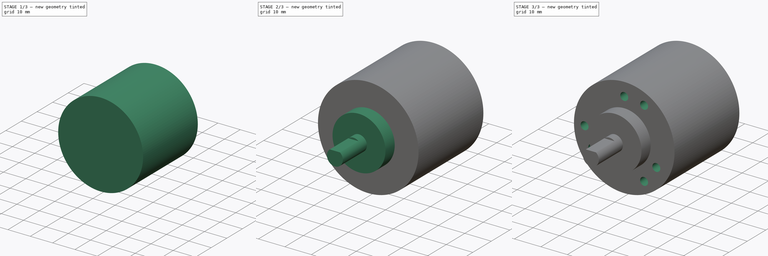
[diagram: build sequence overview — one tinted view per stage of 3, left to right]
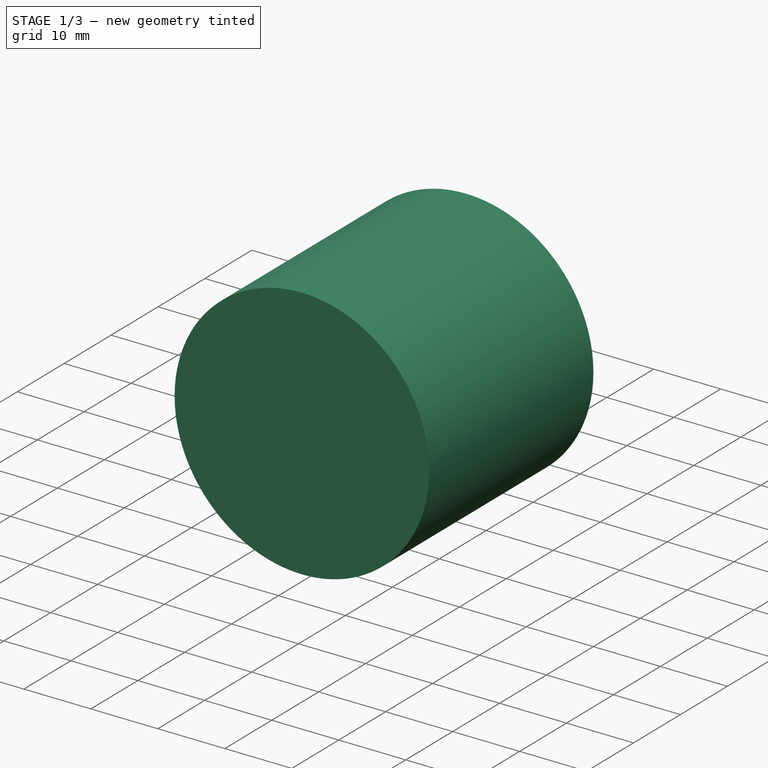
[diagram: stage 1 of 3 — iso view after this stage's code; geometry added in this stage tinted green]
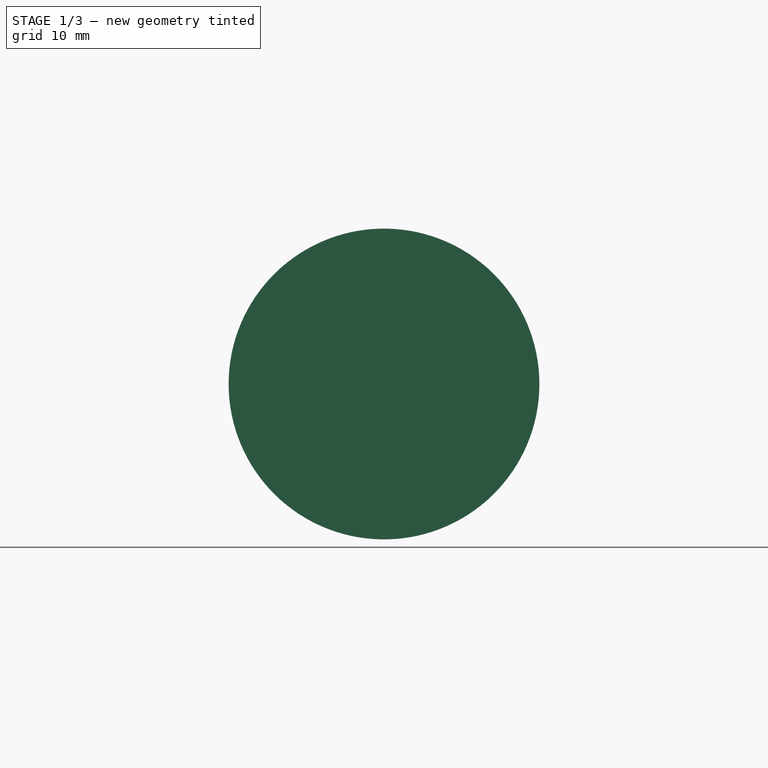
[diagram: stage 1 of 3 — front view after this stage's code; geometry added in this stage tinted green]
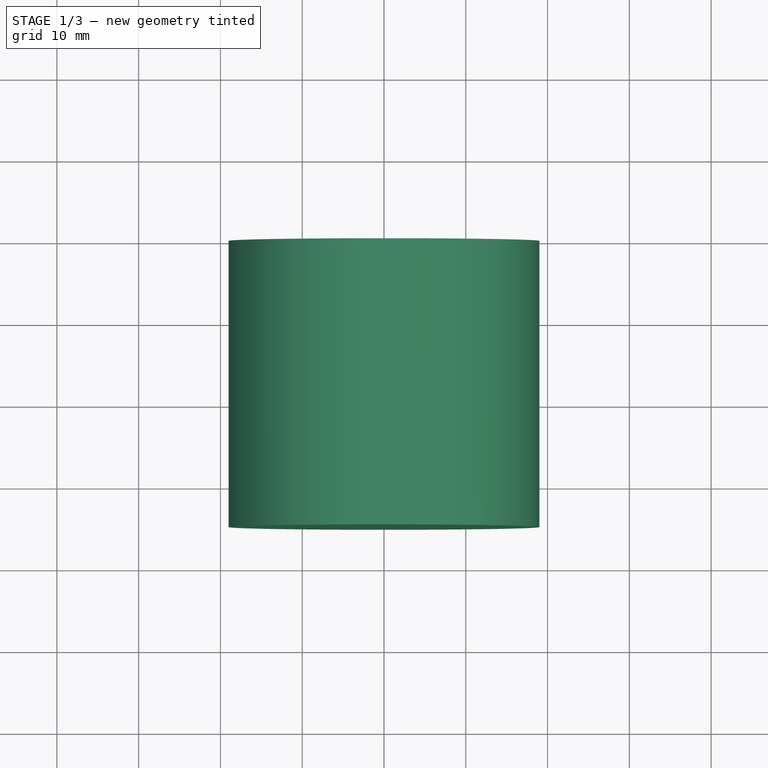
[diagram: stage 1 of 3 — top view after this stage's code; geometry added in this stage tinted green]
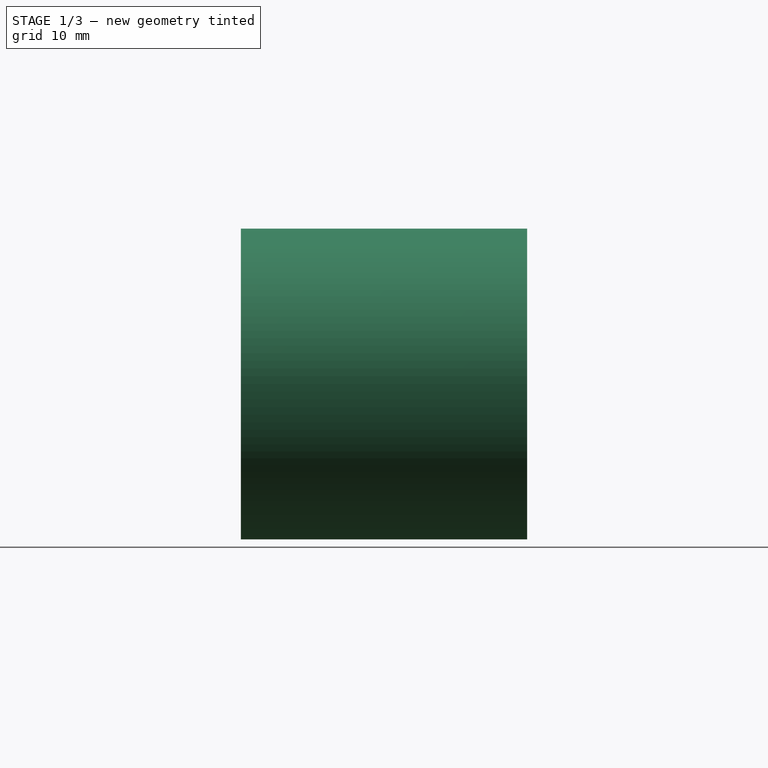
[diagram: stage 1 of 3 — right view after this stage's code; geometry added in this stage tinted green]
FCSTD DOCUMENT  (FreeCAD 0.19R24291 (Git))
Label: Codeur LPD3806-600BM-G5-24C
License: All rights reserved
LicenseURL: http://en.wikipedia.org/wiki/All_rights_reserved
objects: Sketcher::SketchObject×6, PartDesign::Pad×4, PartDesign::Pocket×2, PartDesign::PolarPattern×1, PartDesign::Body×1
note: 20 computed .brp shape members not serialized (recipe doc carries the construction recipe); baked Part::Feature solids carry a one-line shape summary decoded from their .brp

FEATURE [Sketcher::SketchObject] Sketch  label="base_codeur001"
  FullyConstrained = true
  MapMode = 5
  Placement = pos=(0,0,0) rot=(1,0,0;1.5708rad)
  Support = -> [XZ_Plane]
  sketch-geometry (1):
    g0: Circle CenterX=0 CenterY=0 CenterZ=0 NormalX=0 NormalY=0 NormalZ=1 AngleXU=0 Radius=19
  constraints (2):
    c: Coincident(g0,g-1)
    c: Radius(g0) = 19
FEATURE [PartDesign::Pad] Pad  label="base_codeur"
  Direction = (1,1,1)
  Length = 34
  Length2 = 100
  Placement = pos=(0,0,0) rot=(1,0,0;1.5708rad)
  Profile = -> Sketch
  Type = 0
FEATURE [Sketcher::SketchObject] Sketch001  label="base_codeur_up"
  ExternalGeometry = -> [Pad]
  FullyConstrained = true
  MapMode = 5
  Placement = pos=(0,-34,2.26e-14) rot=(1,0,0;1.5708rad)
  Support = -> [Pad]
  sketch-geometry (1):
    g0: Circle CenterX=0 CenterY=0 CenterZ=0 NormalX=0 NormalY=0 NormalZ=1 AngleXU=0 Radius=19
  constraints (2):
    c: Coincident(g0,g-1)
    c: Equal(g0,g-3)
FEATURE [PartDesign::Pad] Pad001  label="base_codeur_up001"
  BaseFeature = -> Pad
  Direction = (1,1,1)
  Length = 1
  Length2 = 100
  Placement = pos=(0,0,0) rot=(1,0,0;1.5708rad)
  Profile = -> Sketch001
  Type = 0
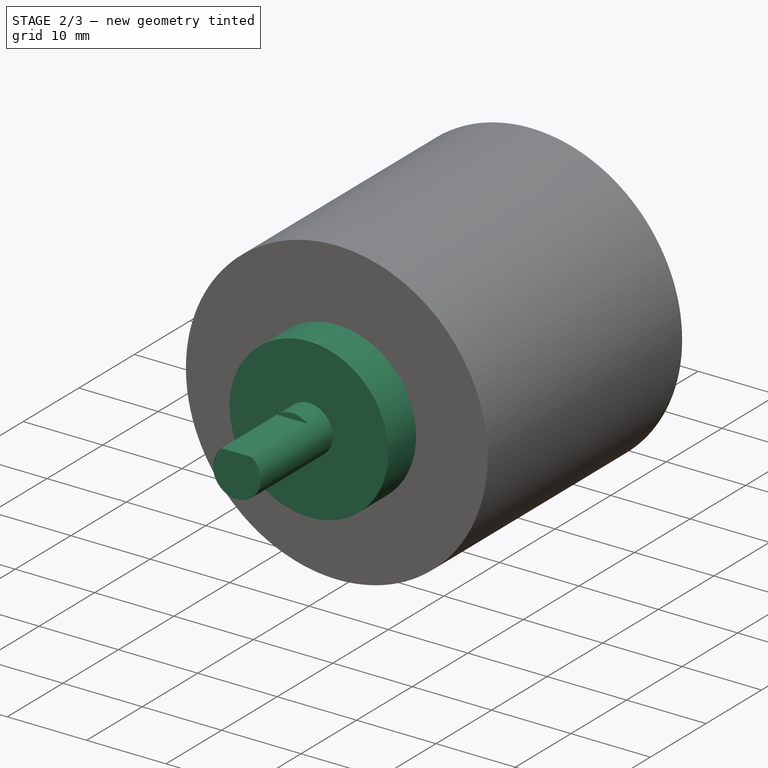
[diagram: stage 2 of 3 — iso view after this stage's code; geometry added in this stage tinted green]
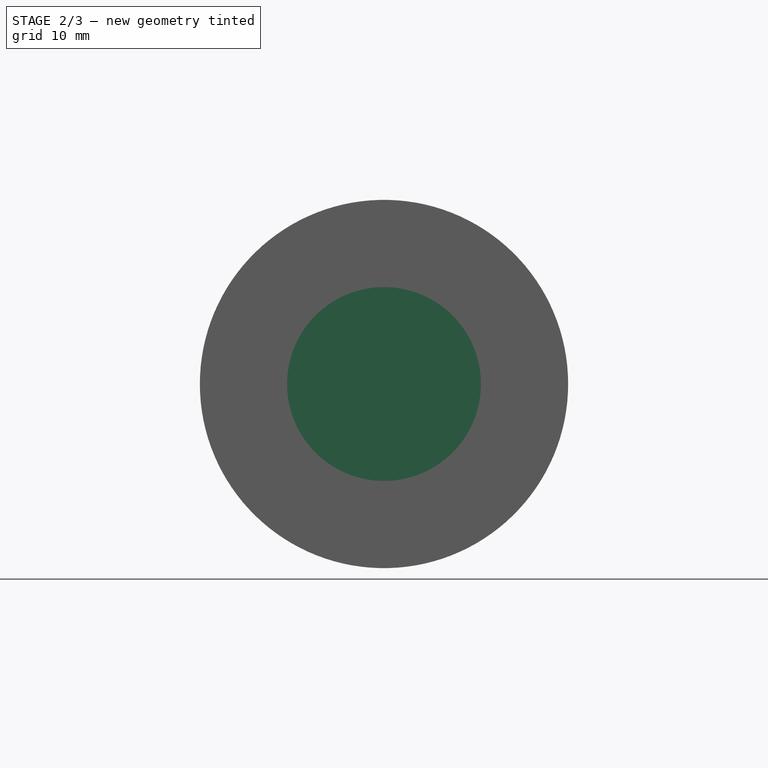
[diagram: stage 2 of 3 — front view after this stage's code; geometry added in this stage tinted green]
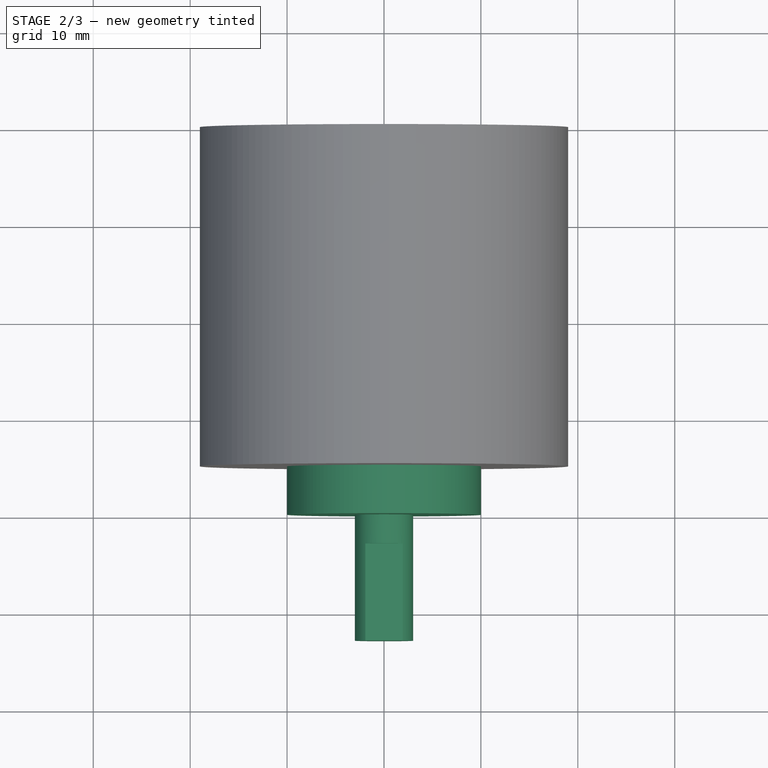
[diagram: stage 2 of 3 — top view after this stage's code; geometry added in this stage tinted green]
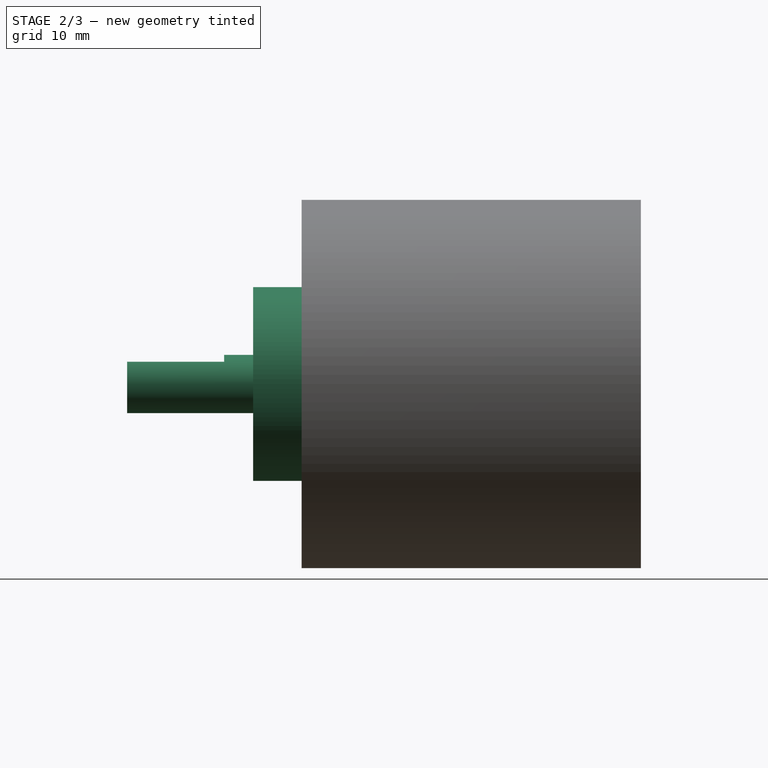
[diagram: stage 2 of 3 — right view after this stage's code; geometry added in this stage tinted green]
FEATURE [Sketcher::SketchObject] Sketch002
  FullyConstrained = true
  MapMode = 5
  Placement = pos=(0,-35,4.58e-14) rot=(1,0,0;1.5708rad)
  Support = -> [Pad001]
  sketch-geometry (1):
    g0: Circle CenterX=0 CenterY=0 CenterZ=0 NormalX=0 NormalY=0 NormalZ=1 AngleXU=0 Radius=10
  constraints (2):
    c: Coincident(g0,g-1)
    c: Radius(g0) = 10
FEATURE [PartDesign::Pad] Pad002  label="base_axe"
  BaseFeature = -> Pad001
  Direction = (1,1,1)
  Length = 5
  Length2 = 100
  Placement = pos=(0,0,0) rot=(1,0,0;1.5708rad)
  Profile = -> Sketch002
  Type = 0
FEATURE [Sketcher::SketchObject] Sketch003  label="axe"
  FullyConstrained = true
  MapMode = 5
  Placement = pos=(0,-40,8.34e-14) rot=(1,0,0;1.5708rad)
  Support = -> [Pad002]
  sketch-geometry (1):
    g0: Circle CenterX=0 CenterY=0 CenterZ=0 NormalX=0 NormalY=0 NormalZ=1 AngleXU=0 Radius=3
  constraints (2):
    c: Coincident(g0,g-1)
    c: Radius(g0) = 3
FEATURE [PartDesign::Pad] Pad003  label="axe001"
  BaseFeature = -> Pad002
  Direction = (1,1,1)
  Length = 13
  Length2 = 100
  Placement = pos=(0,0,0) rot=(1,0,0;1.5708rad)
  Profile = -> Sketch003
  Type = 0
FEATURE [Sketcher::SketchObject] Sketch004
  ExternalGeometry = -> [Pad003]
  FullyConstrained = true
  MapMode = 5
  Placement = pos=(0,-53,1.685e-13) rot=(1,0,0;1.5708rad)
  Support = -> [Pad003]
  sketch-geometry (7):
    g0: LineSegment StartX=-2.5 StartY=2.3 StartZ=0 EndX=2.5 EndY=2.3 EndZ=0
    g1: LineSegment StartX=2.5 StartY=2.3 StartZ=0 EndX=2.5 EndY=5.3 EndZ=0
    g2: LineSegment StartX=2.5 StartY=5.3 StartZ=0 EndX=-2.5 EndY=5.3 EndZ=0
    g3: LineSegment StartX=-2.5 StartY=5.3 StartZ=0 EndX=-2.5 EndY=2.3 EndZ=0
    g4: LineSegment StartX=-2.5 StartY=5.3 StartZ=0 EndX=2.5 EndY=2.3 EndZ=0
    g5: LineSegment StartX=-2.5 StartY=2.3 StartZ=0 EndX=2.5 EndY=5.3 EndZ=0
    g6: GeomPoint X=0 Y=3.8 Z=0
  constraints (18):
    c: Coincident(g0,g1)
    c: Coincident(g1,g2)
    c: Coincident(g2,g3)
    c: Coincident(g3,g0)
    c: Horizontal(g0)
    c: Horizontal(g2)
    c: Vertical(g1)
    c: Vertical(g3)
    c: Coincident(g4,g2)
    c: Coincident(g4,g0)
    c: Coincident(g5,g0)
    c: Coincident(g5,g1)
    c: PointOnObject(g6,g5)
    c: PointOnObject(g6,g4)
    c: PointOnObject(g6,g-2)
    c: DistanceY(g-1,g6) = 3.8
    c: DistanceX(g2,g2) = 5
    c: DistanceY(g1,g1) = 3
FEATURE [PartDesign::Pocket] Pocket  label="poche_axe"
  BaseFeature = -> Pad003
  Length = 10
  Length2 = 100
  Placement = pos=(0,0,0) rot=(1,0,0;1.5708rad)
  Profile = -> Sketch004
  Type = 0
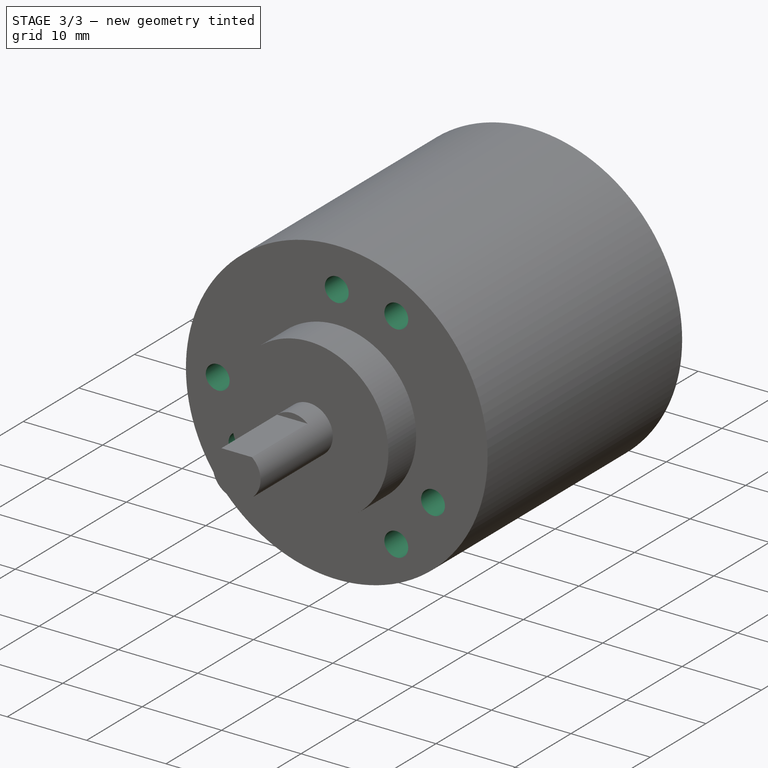
[diagram: stage 3 of 3 — iso view after this stage's code; geometry added in this stage tinted green]
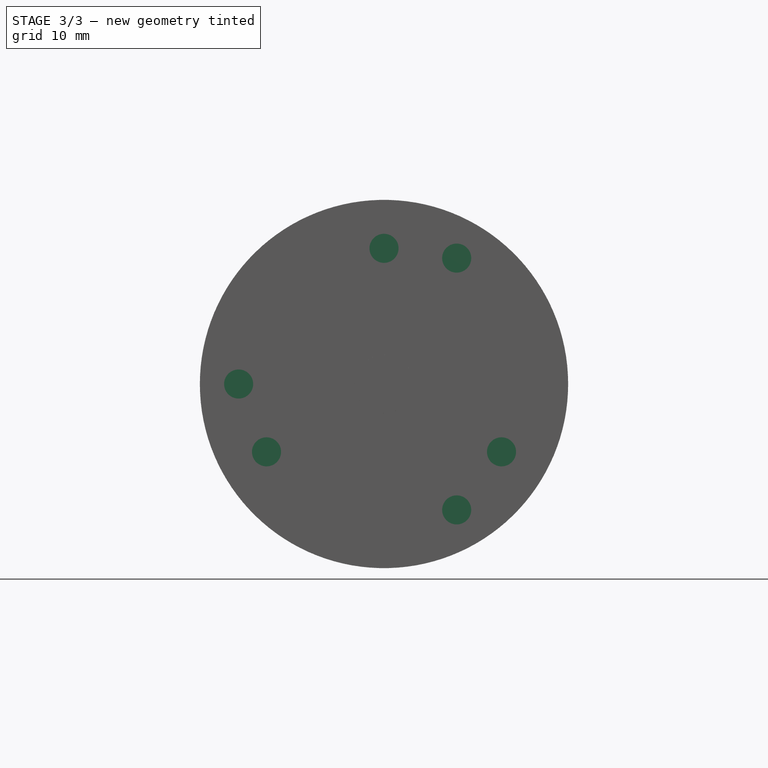
[diagram: stage 3 of 3 — front view after this stage's code; geometry added in this stage tinted green]
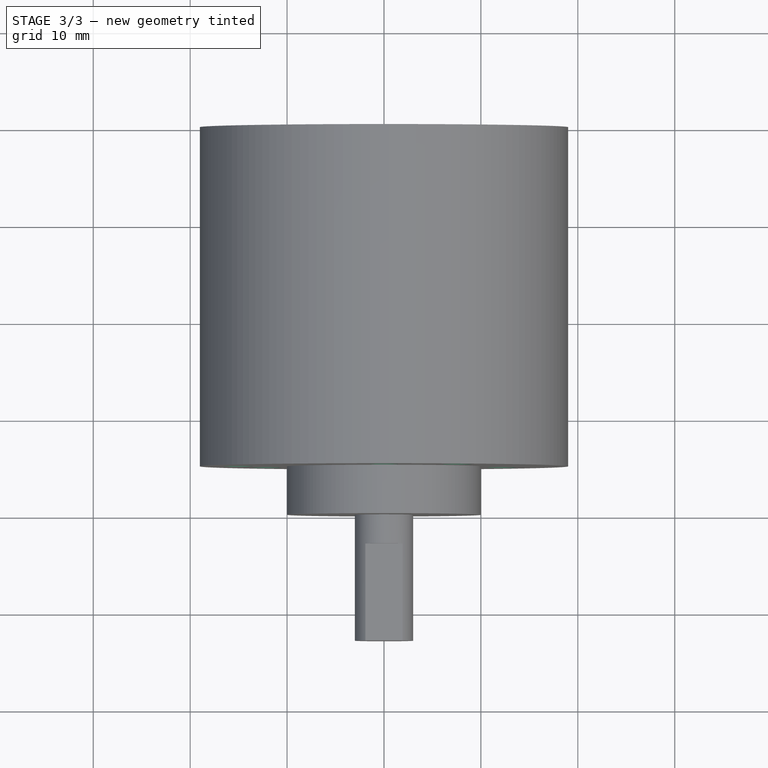
[diagram: stage 3 of 3 — top view after this stage's code; geometry added in this stage tinted green]
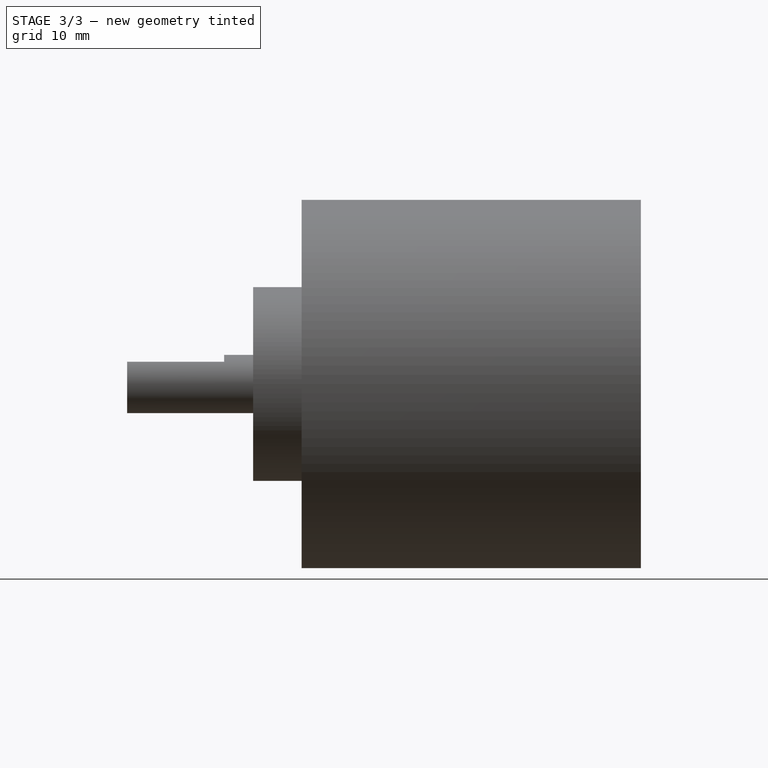
[diagram: stage 3 of 3 — right view after this stage's code; geometry added in this stage tinted green]
FEATURE [Sketcher::SketchObject] Sketch005
  FullyConstrained = true
  MapMode = 5
  Placement = pos=(0,-35,4.58e-14) rot=(1,0,0;1.5708rad)
  Support = -> [Pad001]
  sketch-geometry (3):
    g0: Circle CenterX=0 CenterY=14 CenterZ=0 NormalX=0 NormalY=0 NormalZ=1 AngleXU=0 Radius=1.5
    g1: Circle CenterX=7.5 CenterY=12.9904 CenterZ=0 NormalX=0 NormalY=0 NormalZ=1 AngleXU=0 Radius=1.5
    g2: LineSegment StartX=0 StartY=0 StartZ=0 EndX=7.5 EndY=12.9904 EndZ=0
  constraints (8):
    c: PointOnObject(g0,g-2)
    c: Radius(g0) = 1.5
    c: DistanceY(g-1,g0) = 14
    c: Equal(g1,g0)
    c: Distance(g-1,g1) = 15
    c: Coincident(g2,g-1)
    c: Coincident(g2,g1)
    c: Angle(g2,g-2) = 0.523599
FEATURE [PartDesign::Pocket] Pocket001  label="trous_m3"
  BaseFeature = -> Pocket
  Length = 8
  Length2 = 100
  Placement = pos=(0,0,0) rot=(1,0,0;1.5708rad)
  Profile = -> Sketch005
  Type = 0
FEATURE [PartDesign::PolarPattern] PolarPattern  label="trous_m3_pattern"
  Angle = 360
  Axis = -> Sketch005 [N_Axis]
  BaseFeature = -> Pocket001
  Occurrences = 3
  Originals = -> [Pocket001]
  Placement = pos=(0,0,0) rot=(1,0,0;1.5708rad)
FEATURE [PartDesign::Body] Body
  Group = -> [Sketch,Pad,Sketch001,Pad001,Sketch002,Pad002,Sketch003,Pad003,Sketch004,Pocket,Sketch005,Pocket001,PolarPattern]
  Origin = -> Origin
  Tip = -> PolarPattern
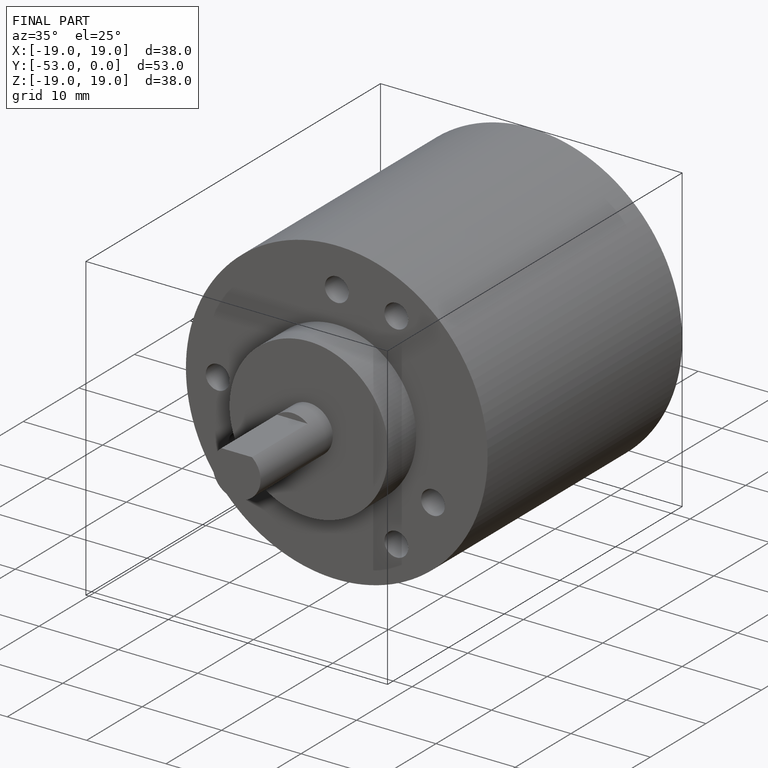
[diagram: finished part — iso view with bounding-box wireframe]
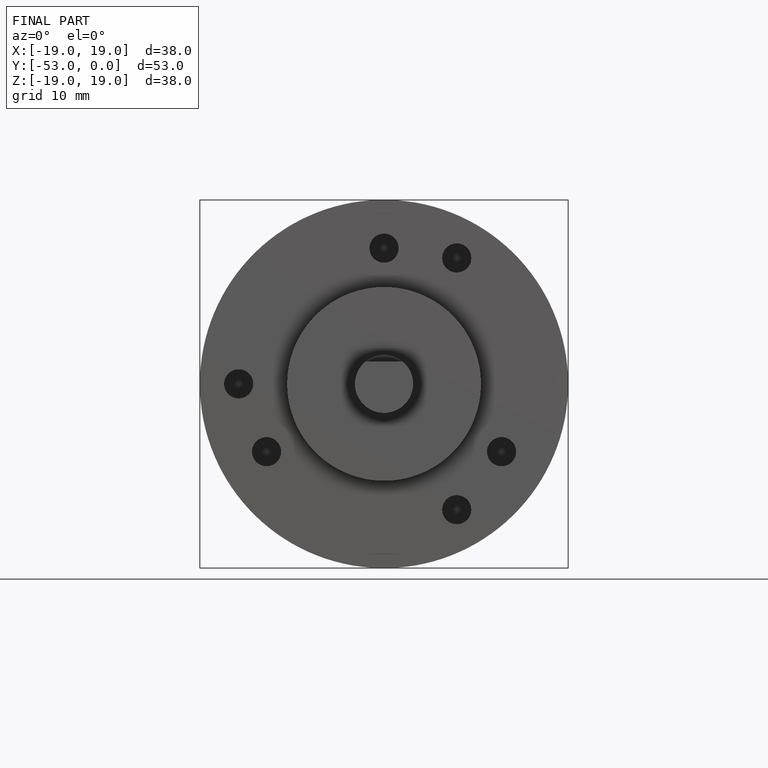
[diagram: finished part — front view with bounding-box wireframe]
